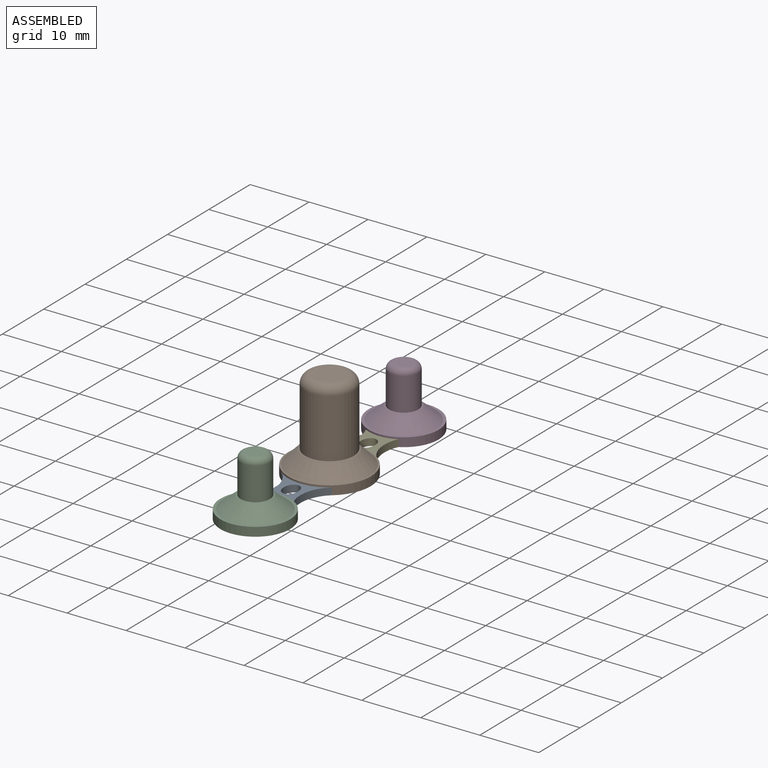
[diagram: assembled view]
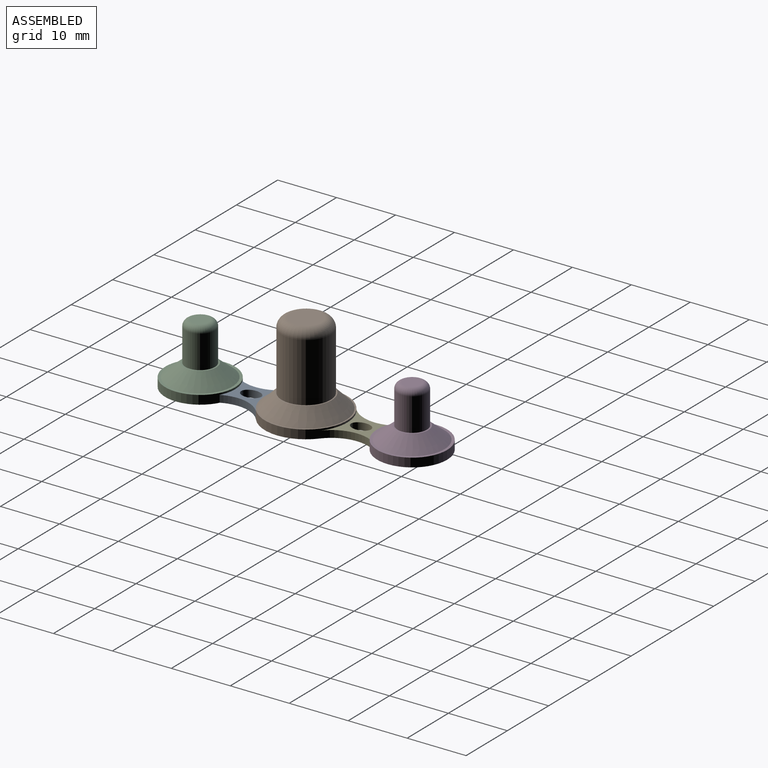
[diagram: assembled view, second angle]
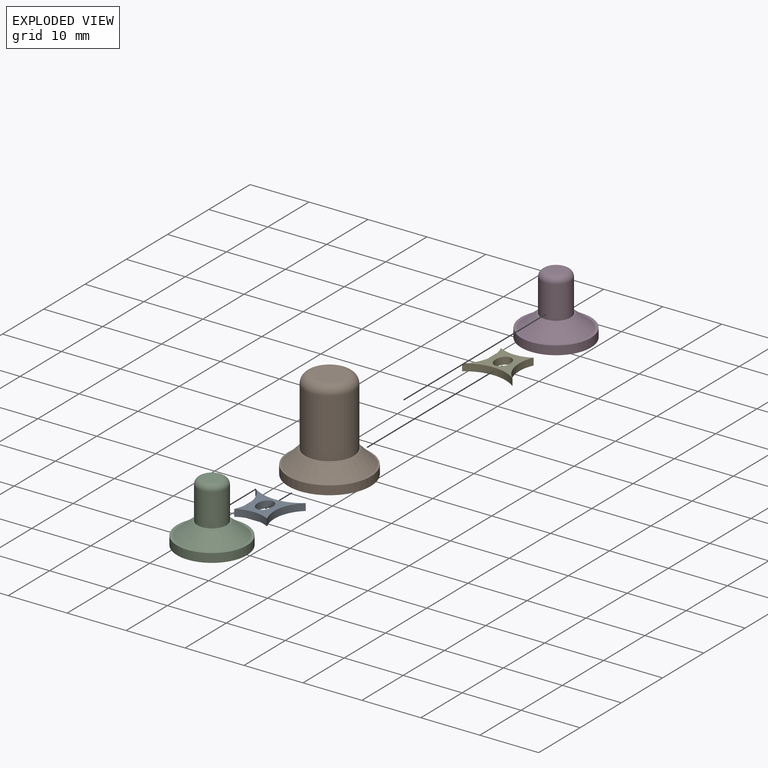
[diagram: exploded view]
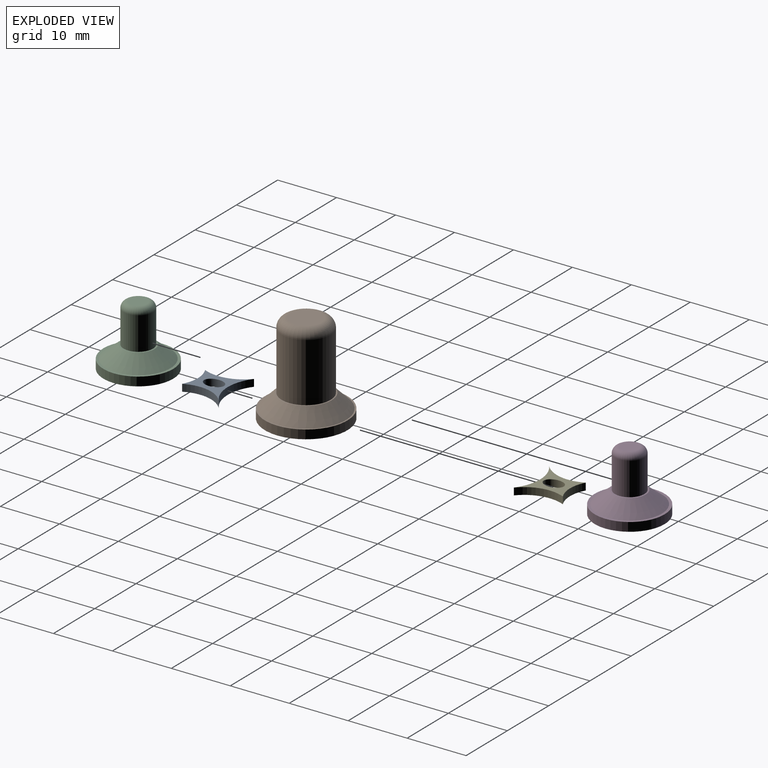
[diagram: exploded view, second angle]
ASSEMBLY  parts=5 mates=4
PART A: 7 faces, bbox 7.3x8.5x1.2 mm
  f0: cylinder r=6.18mm len=7.25mm, axis (0,0,-1), area 9.5mm2, adj f1,f3,f5,f6
  f1: cylinder r=5.7mm len=5.57mm, axis (0,0,-1), area 7mm2, adj f0,f2,f5,f6
  f2: cylinder r=6.04mm len=7.25mm, axis (0,0,-1), area 9.6mm2, adj f1,f3,f5,f6
  f3: cylinder r=7mm len=8.54mm, axis (0,0,-1), area 11mm2, adj f0,f2,f5,f6
  f4: extruded ~3.4x2.45mm, area 11.1mm2, adj f5,f6
  f5: plane 8.54x7.25mm, normal (0,0,1), area 20.8mm2, adj f0,f1,f2,f3,f4
  f6: plane 8.54x7.25mm, normal (0,0,-1), area 20.8mm2, adj f0,f1,f2,f3,f4
PART B: 26 faces, bbox 14x14x17.1 mm
  f0: plane 6x6mm, normal (0,0,-1), area 21.6mm2, adj f12,f13,f14,f15,f16,f17,f18,f19
  f1: cylinder r=7mm len=14mm, axis (0,0,-1), area 66mm2, adj f2,f3
  f2: plane 14x14mm, normal (0,0,1), area 10.8mm2, adj f1,f5
  f3: plane 14x14mm, normal (0,0,-1), area 50.1mm2, adj f1,f9
  f4: plane 8.7x8.7mm, normal (0,0,1), area 5.3mm2, adj f5,f6
  f5: cone r=4.35mm half-angle=45deg, axis (0,0,-1), area 118.4mm2, adj f2,f4
  f6: cylinder r=4.15mm len=10mm, axis (0,0,-1), area 260.8mm2, adj f4,f8
  f7: plane 5.3x5.3mm, normal (0,0,1), area 22.1mm2, adj f8
  f8: torus R=2.65mm, axis (0,0,1), area 53.4mm2, adj f6,f7
  f9: cylinder r=5.75mm len=11.5mm, axis (0,0,-1), area 18.1mm2, adj f3,f10
  f10: cone r=5.75mm half-angle=30deg, axis (0,0,-1), area 84.9mm2, adj f9,f11
  f11: plane 8.84x8.84mm, normal (0,0,-1), area 33.2mm2, adj f10,f12
  f12: cylinder r=3mm len=6mm, axis (0,0,1), area 18.8mm2, adj f0,f11
  f13: plane 3.5x1.43mm, normal (0,1,0), area 5mm2, adj f0,f14,f24,f25
  f14: plane 3.5x1mm, normal (1,0,0), area 3.5mm2, adj f0,f13,f15,f25
  f15: plane 3.5x1.43mm, normal (0,-1,0), area 5mm2, adj f0,f14,f16,f25
  f16: plane 3.5x1.43mm, normal (1,0,0), area 5mm2, adj f0,f15,f17,f25
  f17: plane 3.5x1mm, normal (0,-1,0), area 3.5mm2, adj f0,f16,f18,f25
  f18: plane 3.5x1.43mm, normal (-1,0,0), area 5mm2, adj f0,f17,f19,f25
  f19: plane 3.5x1.43mm, normal (0,-1,0), area 5mm2, adj f0,f18,f20,f25
  f20: plane 3.5x1mm, normal (-1,0,0), area 3.5mm2, adj f0,f19,f21,f25
  f21: plane 3.5x1.43mm, normal (0,1,0), area 5mm2, adj f0,f20,f22,f25
  f22: plane 3.5x1.43mm, normal (-1,0,0), area 5mm2, adj f0,f21,f23,f25
  f23: plane 3.5x1mm, normal (0,1,0), area 3.5mm2, adj f0,f22,f24,f25
  f24: plane 3.5x1.43mm, normal (1,0,0), area 5mm2, adj f0,f13,f23,f25
  f25: plane 3.85x3.85mm, normal (0,0,-1), area 6.7mm2, adj f13,f14,f15,f16,f17,f18,f19,f20
PART C: 27 faces, bbox 11.9x11.9x11.9 mm
  f0: plane 6x6mm, normal (0,0,-1), area 21.6mm2, adj f13,f14,f15,f16,f17,f18,f19,f20
  f1: cylinder r=5.92mm len=11.85mm, axis (0,0,-1), area 55.8mm2, adj f2,f3
  f2: plane 11.85x11.85mm, normal (0,0,1), area 16mm2, adj f1,f5
  f3: plane 11.85x11.85mm, normal (0,0,-1), area 31.7mm2, adj f1,f9
  f4: plane 5.5x5.5mm, normal (0,0,1), area 4.1mm2, adj f5,f6
  f5: cone r=2.75mm half-angle=51.1deg, axis (0,0,-1), area 90.6mm2, adj f2,f4
  f6: cylinder r=2.5mm len=5.6mm, axis (0,0,-1), area 88mm2, adj f4,f8
  f7: plane 3x3mm, normal (0,0,1), area 7.1mm2, adj f8
  f8: torus R=1.5mm, axis (0,0,1), area 21.1mm2, adj f6,f7
  f9: cylinder r=5mm len=10mm, axis (0,0,-1), area 15.7mm2, adj f3,f10
  f10: plane 10x10mm, normal (0,0,-1), area 6.2mm2, adj f9,f11
  f11: cone r=4.8mm half-angle=30deg, axis (0,0,-1), area 69mm2, adj f10,f12
  f12: plane 6.94x6.94mm, normal (0,0,-1), area 9.6mm2, adj f11,f13
  f13: cylinder r=3mm len=6mm, axis (0,0,1), area 18.8mm2, adj f0,f12
  f14: plane 3.4x1.43mm, normal (0,1,0), area 4.8mm2, adj f0,f15,f25,f26
  f15: plane 3.4x1mm, normal (1,0,0), area 3.4mm2, adj f0,f14,f16,f26
  f16: plane 3.4x1.43mm, normal (0,-1,0), area 4.8mm2, adj f0,f15,f17,f26
  f17: plane 3.4x1.43mm, normal (1,0,0), area 4.8mm2, adj f0,f16,f18,f26
  f18: plane 3.4x1mm, normal (0,-1,0), area 3.4mm2, adj f0,f17,f19,f26
  f19: plane 3.4x1.43mm, normal (-1,0,0), area 4.8mm2, adj f0,f18,f20,f26
  f20: plane 3.4x1.43mm, normal (0,-1,0), area 4.8mm2, adj f0,f19,f21,f26
  f21: plane 3.4x1mm, normal (-1,0,0), area 3.4mm2, adj f0,f20,f22,f26
  f22: plane 3.4x1.43mm, normal (0,1,0), area 4.8mm2, adj f0,f21,f23,f26
  f23: plane 3.4x1.43mm, normal (-1,0,0), area 4.8mm2, adj f0,f22,f24,f26
  f24: plane 3.4x1mm, normal (0,1,0), area 3.4mm2, adj f0,f23,f25,f26
  f25: plane 3.4x1.43mm, normal (1,0,0), area 4.8mm2, adj f0,f14,f24,f26
  f26: plane 3.85x3.85mm, normal (0,0,-1), area 6.7mm2, adj f14,f15,f16,f17,f18,f19,f20,f21
PART D: same geometry as C
PART E: same geometry as A
PLACE A rot(axis=(0,0,-1),90deg) t=(-2.15,-15.42,-1.51)mm
PLACE B t=(-2.15,2.35,-1.51)mm fixed
PLACE C t=(-2.15,-15.62,-1.51)mm
PLACE D t=(-2.15,20.34,-1.51)mm
PLACE E rot(axis=(0,0,1),90deg) t=(-2.15,20.12,-1.51)mm
MATE fastened B.f1 <-> A.f3  axis (0,0,-1) through (-2.15,2.35,-1.51)mm
MATE fastened A.f1 <-> C.f3  axis (0,0,-1) through (-2.15,-15.42,-1.51)mm
MATE fastened E.f6 <-> D.f3  axis (0,0,-1) through (-2.15,11.67,-1.51)mm
MATE fastened B.f1 <-> E.f3  axis (0,0,-1) through (-2.15,2.35,-1.51)mm
